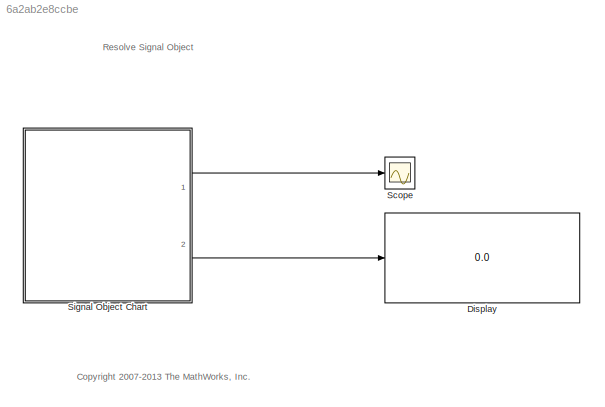
MODEL slx_6a2ab2e8ccbe
KIND model
CONFIG AbsTol = auto
CONFIG EnableMultiTasking = on
CONFIG FixedStep = 1
CONFIG MaxStep = auto
CONFIG MinStep = auto
CONFIG PostLoadFcn = load sf_resolve_signal_object_data;
CONFIG RelTol = 1e-3
CONFIG SampleTimeConstraint = Unconstrained
CONFIG Solver = FixedStepDiscrete
CONFIG SolverName = FixedStepDiscrete
CONFIG StartTime = 0.0
CONFIG StopTime = 5
BLOCK [Display] Display
  Decimation = 1
  Ports = [1]
BLOCK [Scope] Scope
  NumInputPorts = 1
  Ports = [1]
  ScopeSpecificationString = Simulink.scopes.TimeScopeBlockCfg('CurrentConfiguration', extmgr.ConfigurationSet(extmgr.Configuration('Core','General UI',true,'MessageLogAutoOpenMode','for warn/fail messages','ShowCloseAll',true,'ShowBringAllForward',true),extmgr.Configuration('Core','Source UI',true,'PlaybackToolbar',true),extmgr.Configuration('Sources','WiredSimulink',true,'PointsPerSignal',50000,'DataLoggingLimitDataPoints',...<+1901ch>
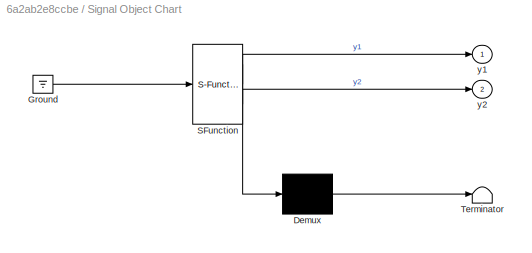
BLOCK [SubSystem] Signal Object Chart
  ErrorFcn = Stateflow.Translate.translate
  PermitHierarchicalResolution = ExplicitOnly
  Ports = [0, 2]
  RequestExecContextInheritance = off
  SFBlockType = Chart
  TreatAsAtomicUnit = on
  Variant = off
BLOCK [Demux] Signal Object Chart/ Demux 
  Outputs = 1
  Ports = [1, 1]
BLOCK [Ground] Signal Object Chart/ Ground 
BLOCK [S-Function] Signal Object Chart/ SFunction 
  EnableBusSupport = off
  FunctionName = sf_sfun
  PortCounts = [1 3]
  Ports = [1, 3]
  SFcnIsStateOwnerBlock = off
  SFunctionDeploymentMode = off
  Tag = Stateflow S-Function sf_resolve_signal_object 1
BLOCK [Terminator] Signal Object Chart/ Terminator 
BLOCK [Outport] Signal Object Chart/y1
  IconDisplay = Port number
BLOCK [Outport] Signal Object Chart/y2
  IconDisplay = Port number
  Port = 2
ANNOTATION (root): <copyright redacted>
ANNOTATION (root): Resolve Signal Object
LINE Signal Object Chart:1 -> Scope:1
LINE Signal Object Chart:2 -> Display:1
CHART Signal Object Chart states=1 transitions=1
  STATE_LABEL 'S\nen: y1 = 2 * (local + 10);\ndu: y2 = 5;'
